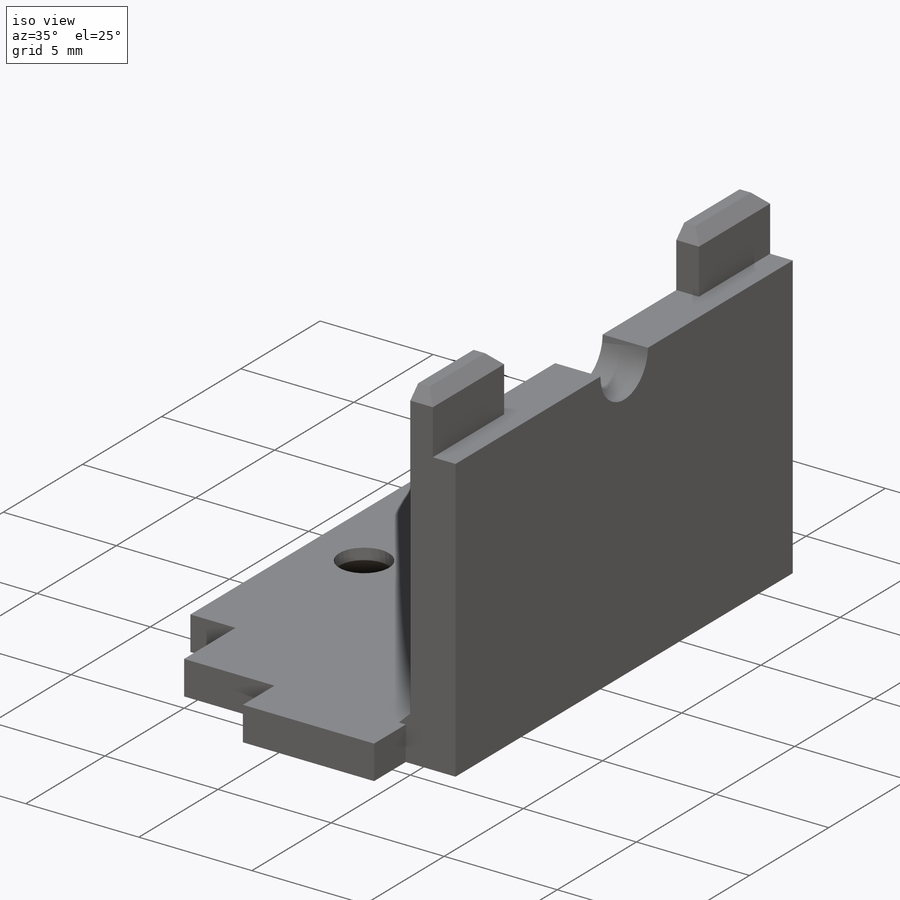
[diagram: iso view]
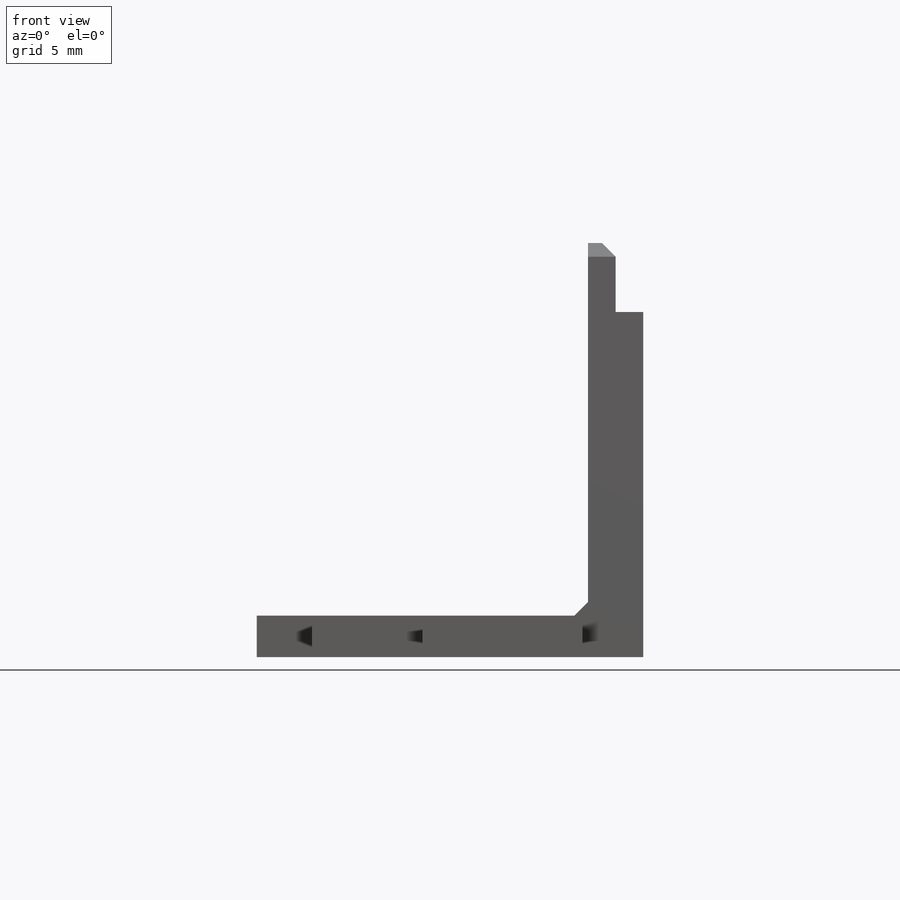
[diagram: front view]
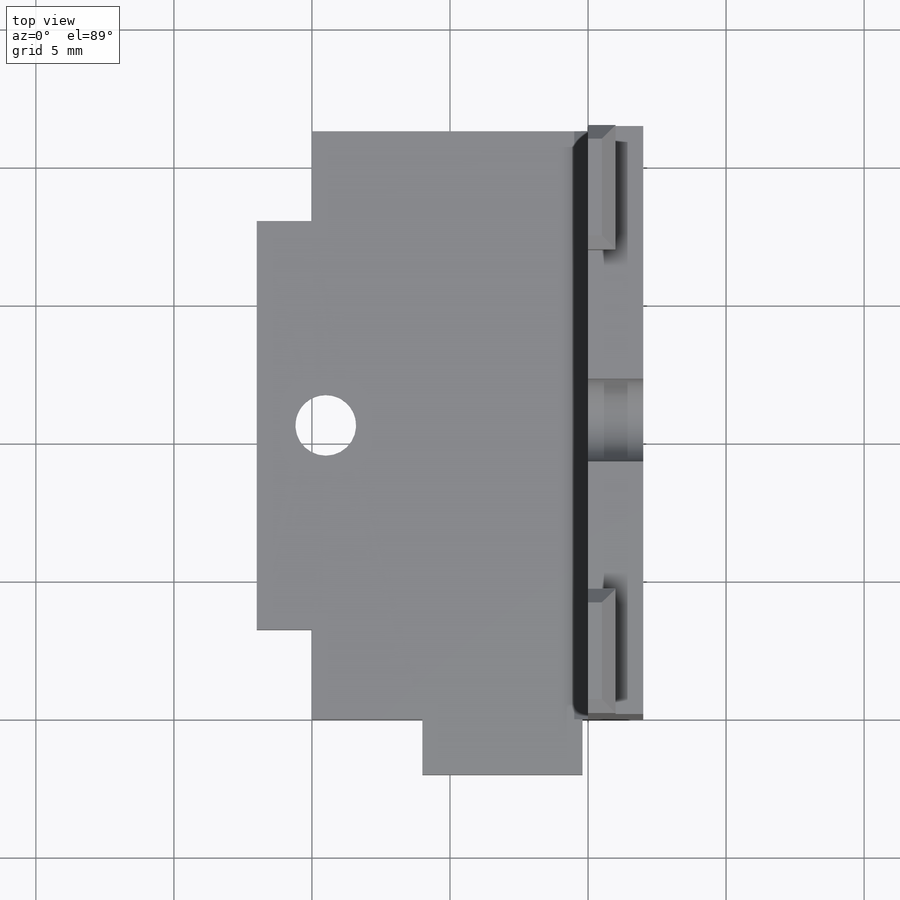
[diagram: top view]
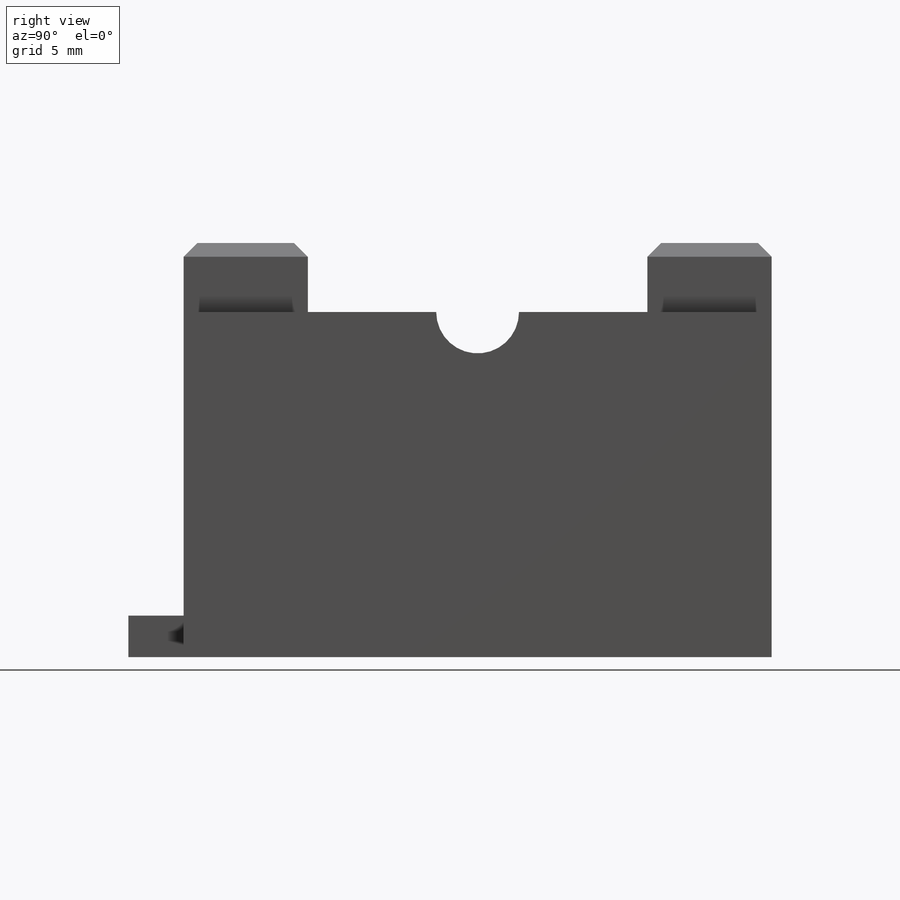
[diagram: right view]
SOLIDWORKS PART (.sldprt)
format: sldprt  version: not decoded by parser v0  size: 252,416 bytes
history: native  units: mm
features: sketch x7, extrude x5, chamfer x3, cut_extrude x2, material x1 (+13 scaffold rows collapsed)
feature tree (31):
  scaffold x13  (default folders/planes/origin — collapsed)
  material  "Material <not specified>"
  sketch  "Sketch1"  dims[D1=12.0mm D2=21.3mm]
  extrude  "Boss-Extrude1"  Depth=1.5mm
  sketch  "Sketch2"  dims[D1=2.0mm]
  extrude  "Boss-Extrude2"  Depth=11mm
  sketch  "Sketch3"  dims[D1=14.8mm D2=2.0mm]
  extrude  "Boss-Extrude3"  [1 undecoded]
  sketch  "Sketch4"  dims[D1=3.0mm]
  cut_extrude  "Cut-Extrude1"  [1 undecoded]
  chamfer  "Chamfer1"  Distance=0.5mm Angle=45deg
  sketch  "Sketch5"  dims[D1=2.2mm]
  cut_extrude  "Cut-Extrude2"  [1 undecoded]
  chamfer  "Chamfer2"  Distance=1mm Angle=45deg
  sketch  "Sketch6"  dims[D1=4.5mm]
  extrude  "Boss-Extrude4"  Depth=2.5mm
  chamfer  "Chamfer3"  Distance=0.5mm Angle=45deg
  sketch  "Sketch7"  dims[D1=2.2mm D2=5.8mm]
  extrude  "Boss-Extrude5"  Depth=2mm
decode coverage: 14 of 17 modeling features carry decoded parameters
note: 3 parameter values undecoded
summary: no parameter record found for 3 features
note: suppression state not decoded; provenance and decode notes live in map.json
